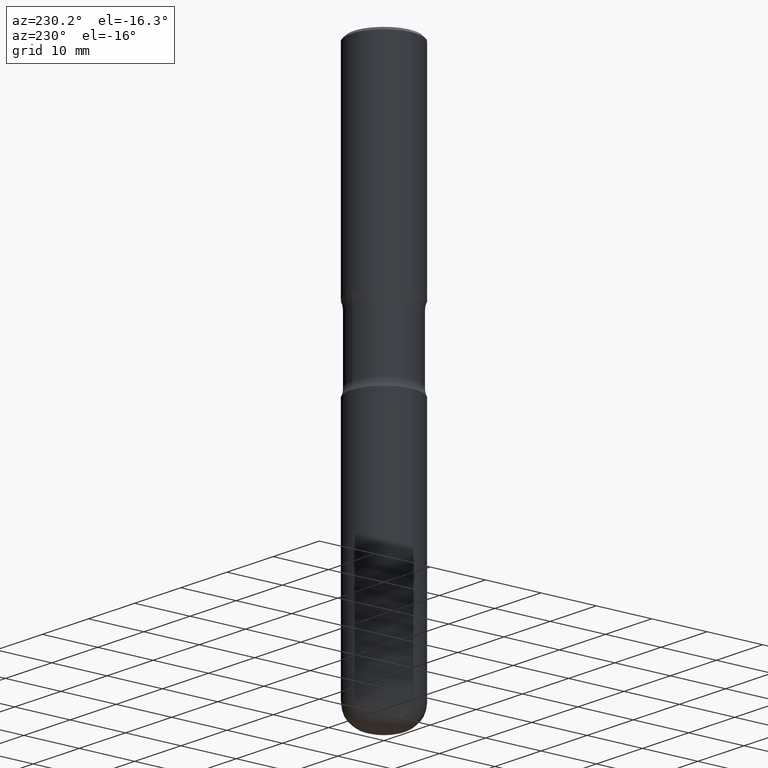
[diagram: clean part render]
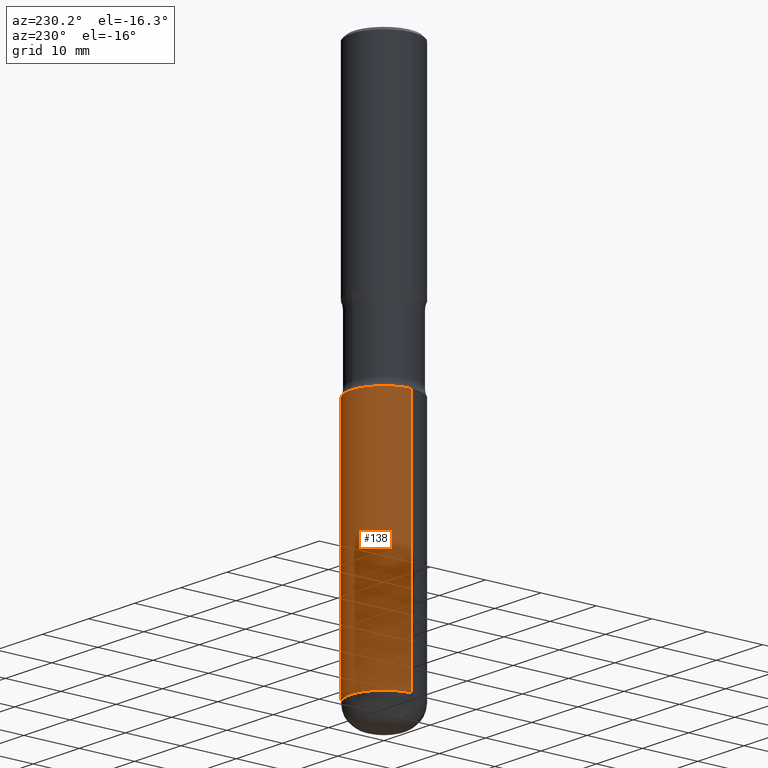
[diagram: same view with one face highlighted and labeled with its STEP entity id]
A machine part, auxiliary view. The second image highlights one B-rep face of the part: STEP entity #138.
In plain terms, the highlighted cylindrical surface (partial cylindrical patch) has radius 5.9995 mm, axis along (-0, 0, 1).
Its self-contained STEP definition (entity closure, byte-faithful):
#10 = DIRECTION ( 'NONE',  ( 1.000000000000000000, -6.982962677686266711E-15, 4.876176775795936353E-29 ) ) ;
#12 = CARTESIAN_POINT ( 'NONE',  ( 0.000000000000000000, 0.000000000000000000, 0.000000000000000000 ) ) ;
#25 = LINE ( 'NONE', #182, #547 ) ;
#31 = EDGE_LOOP ( 'NONE', ( #415, #184, #181, #326 ) ) ;
#39 = CARTESIAN_POINT ( 'NONE',  ( 5.006363740022213922E-29, -7.147760596879691357E-15, -2.047200000000000575 ) ) ;
#58 = DIRECTION ( 'NONE',  ( -2.445468806185136597E-29, 3.491481338843145583E-15, 1.000000000000000000 ) ) ;
#79 = CARTESIAN_POINT ( 'NONE',  ( -0.2362000000000002153, -8.492732346318610806E-15, -2.047200000000000575 ) ) ;
#83 = LINE ( 'NONE', #461, #449 ) ;
#88 = EDGE_CURVE ( 'NONE', #508, #420, #220, .T. ) ;
#105 = VERTEX_POINT ( 'NONE', #261 ) ;
#118 = AXIS2_PLACEMENT_3D ( 'NONE', #252, #400, #207 ) ;
#126 = AXIS2_PLACEMENT_3D ( 'NONE', #12, #58, #10 ) ;
#138 = ADVANCED_FACE ( 'NONE', ( #484 ), #538, .T. ) ;
#181 = ORIENTED_EDGE ( 'NONE', *, *, #460, .F. ) ;
#182 = CARTESIAN_POINT ( 'NONE',  ( -0.2362000000000002709, 1.678301941865358564E-15, -1.161852468318210018E-29 ) ) ;
#184 = ORIENTED_EDGE ( 'NONE', *, *, #308, .T. ) ;
#207 = DIRECTION ( 'NONE',  ( 1.000000000000000000, -6.982962677686263555E-15, 0.000000000000000000 ) ) ;
#220 = CIRCLE ( 'NONE', #118, 0.2362000000000003264 ) ;
#234 = DIRECTION ( 'NONE',  ( -2.445468806185136877E-29, 3.491481338843145188E-15, 1.000000000000000000 ) ) ;
#252 = CARTESIAN_POINT ( 'NONE',  ( 9.241426618573632392E-29, -1.319430797948824935E-14, -3.779000000000000359 ) ) ;
#261 = CARTESIAN_POINT ( 'NONE',  ( 0.2362000000000002153, -8.797136381349187883E-15, -2.047200000000000575 ) ) ;
#308 = EDGE_CURVE ( 'NONE', #420, #408, #25, .T. ) ;
#326 = ORIENTED_EDGE ( 'NONE', *, *, #550, .F. ) ;
#340 = CARTESIAN_POINT ( 'NONE',  ( 0.2362000000000002709, -1.484368376395774588E-14, -3.779000000000000359 ) ) ;
#363 = DIRECTION ( 'NONE',  ( -2.445468806185136877E-29, 3.491481338843145188E-15, 1.000000000000000000 ) ) ;
#400 = DIRECTION ( 'NONE',  ( -2.445468806185136597E-29, 3.491481338843145583E-15, 1.000000000000000000 ) ) ;
#408 = VERTEX_POINT ( 'NONE', #79 ) ;
#415 = ORIENTED_EDGE ( 'NONE', *, *, #88, .T. ) ;
#420 = VERTEX_POINT ( 'NONE', #427 ) ;
#427 = CARTESIAN_POINT ( 'NONE',  ( -0.2362000000000002709, -1.151600603762289138E-14, -3.779000000000000359 ) ) ;
#449 = VECTOR ( 'NONE', #234, 39.37007874015748143 ) ;
#460 = EDGE_CURVE ( 'NONE', #105, #408, #555, .T. ) ;
#461 = CARTESIAN_POINT ( 'NONE',  ( 0.2362000000000002709, -1.649375784469498103E-15, 1.151752954443001489E-29 ) ) ;
#484 = FACE_OUTER_BOUND ( 'NONE', #31, .T. ) ;
#508 = VERTEX_POINT ( 'NONE', #340 ) ;
#509 = DIRECTION ( 'NONE',  ( -2.445468806185136597E-29, 3.491481338843145583E-15, 1.000000000000000000 ) ) ;
#516 = AXIS2_PLACEMENT_3D ( 'NONE', #39, #509, #519 ) ;
#519 = DIRECTION ( 'NONE',  ( 1.000000000000000000, -6.982962677686266711E-15, 0.000000000000000000 ) ) ;
#538 = CYLINDRICAL_SURFACE ( 'NONE', #126, 0.2362000000000002709 ) ;
#547 = VECTOR ( 'NONE', #363, 39.37007874015748143 ) ;
#550 = EDGE_CURVE ( 'NONE', #508, #105, #83, .T. ) ;
#555 = CIRCLE ( 'NONE', #516, 0.2362000000000002153 ) ;